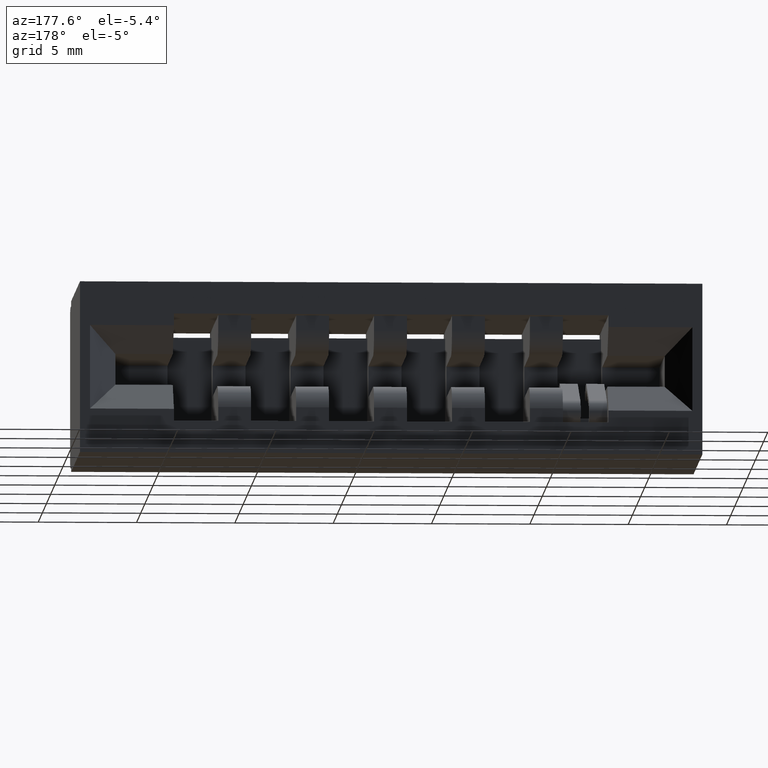
[diagram: clean part render]
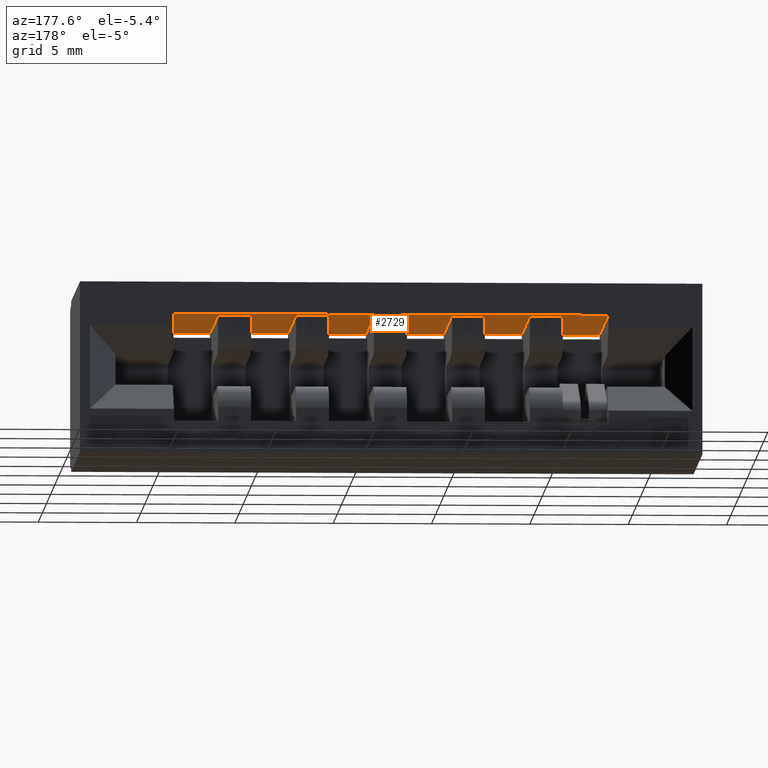
[diagram: same view with one face highlighted and labeled with its STEP entity id]
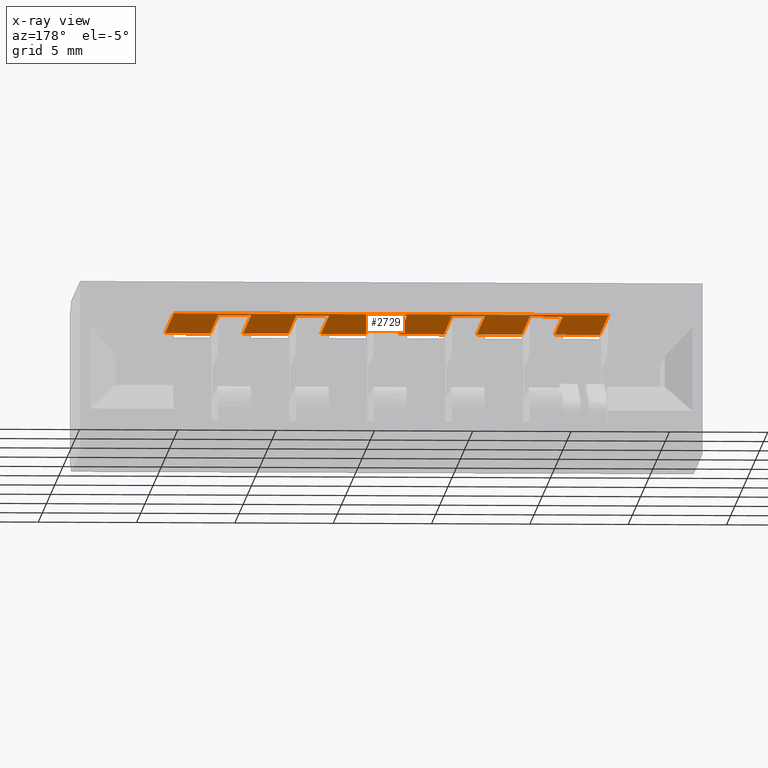
[diagram: x-ray of the same camera — body ghosted, the highlighted face saturated]
A machine part, auxiliary view. The second image highlights one B-rep face of the part: STEP entity #2729.
The next image is the same camera in x-ray: the body ghosted, the highlighted face saturated — about 7% of this face is hidden behind the body in this view.
In plain terms, the highlighted planar face has unit normal (0, 0, 1).
Its self-contained STEP definition (entity closure, byte-faithful):
#8 = LINE ( 'NONE', #5759, #22 ) ;
#22 = VECTOR ( 'NONE', #6396, 39.37007874015748100 ) ;
#29 = VERTEX_POINT ( 'NONE', #8475 ) ;
#115 = EDGE_CURVE ( 'NONE', #4998, #3089, #1166, .T. ) ;
#126 = ORIENTED_EDGE ( 'NONE', *, *, #4371, .F. ) ;
#154 = DIRECTION ( 'NONE',  ( -0.0000000000000000000, 1.000000000000000000, -0.0000000000000000000 ) ) ;
#164 = ORIENTED_EDGE ( 'NONE', *, *, #8916, .F. ) ;
#183 = EDGE_CURVE ( 'NONE', #778, #3916, #646, .T. ) ;
#273 = ORIENTED_EDGE ( 'NONE', *, *, #6225, .T. ) ;
#380 = DIRECTION ( 'NONE',  ( -0.0000000000000000000, 1.000000000000000000, -0.0000000000000000000 ) ) ;
#385 = ORIENTED_EDGE ( 'NONE', *, *, #8248, .F. ) ;
#398 = CARTESIAN_POINT ( 'NONE',  ( 0.5760000000000004000, 0.05099999999999999700, -0.06400000000000004300 ) ) ;
#484 = ORIENTED_EDGE ( 'NONE', *, *, #8576, .T. ) ;
#509 = ORIENTED_EDGE ( 'NONE', *, *, #8565, .T. ) ;
#566 = VECTOR ( 'NONE', #6079, 39.37007874015748100 ) ;
#596 = VERTEX_POINT ( 'NONE', #6298 ) ;
#626 = VECTOR ( 'NONE', #8853, 39.37007874015748100 ) ;
#646 = LINE ( 'NONE', #5884, #566 ) ;
#661 = LINE ( 'NONE', #8187, #626 ) ;
#680 = CARTESIAN_POINT ( 'NONE',  ( 0.4860000000000004300, 0.05099999999999999700, -0.06400000000000001500 ) ) ;
#692 = VECTOR ( 'NONE', #380, 39.37007874015748100 ) ;
#724 = CARTESIAN_POINT ( 'NONE',  ( 0.8880000000000004600, 0.05099999999999999700, -0.06399999999999997400 ) ) ;
#741 = ORIENTED_EDGE ( 'NONE', *, *, #8796, .T. ) ;
#756 = ORIENTED_EDGE ( 'NONE', *, *, #8585, .T. ) ;
#778 = VERTEX_POINT ( 'NONE', #6449 ) ;
#788 = VERTEX_POINT ( 'NONE', #8492 ) ;
#806 = LINE ( 'NONE', #1947, #692 ) ;
#828 = ORIENTED_EDGE ( 'NONE', *, *, #4398, .T. ) ;
#830 = ORIENTED_EDGE ( 'NONE', *, *, #5405, .T. ) ;
#848 = ORIENTED_EDGE ( 'NONE', *, *, #9094, .F. ) ;
#853 = DIRECTION ( 'NONE',  ( -1.000000000000000000, 0.0000000000000000000, 1.897116662266849500E-016 ) ) ;
#888 = ORIENTED_EDGE ( 'NONE', *, *, #8800, .F. ) ;
#926 = VECTOR ( 'NONE', #5428, 39.37007874015748100 ) ;
#963 = LINE ( 'NONE', #4812, #926 ) ;
#982 = VECTOR ( 'NONE', #2847, 39.37007874015748100 ) ;
#1075 = ORIENTED_EDGE ( 'NONE', *, *, #8399, .T. ) ;
#1166 = LINE ( 'NONE', #5172, #982 ) ;
#1196 = VECTOR ( 'NONE', #154, 39.37007874015748100 ) ;
#1213 = VECTOR ( 'NONE', #4227, 39.37007874015748100 ) ;
#1222 = AXIS2_PLACEMENT_3D ( 'NONE', #5955, #6029, #5922 ) ;
#1243 = LINE ( 'NONE', #7927, #1196 ) ;
#1267 = DIRECTION ( 'NONE',  ( -0.0000000000000000000, 1.000000000000000000, -0.0000000000000000000 ) ) ;
#1304 = ORIENTED_EDGE ( 'NONE', *, *, #8867, .T. ) ;
#1310 = LINE ( 'NONE', #5916, #1213 ) ;
#1336 = ORIENTED_EDGE ( 'NONE', *, *, #8970, .F. ) ;
#1349 = VECTOR ( 'NONE', #8042, 39.37007874015748100 ) ;
#1353 = ORIENTED_EDGE ( 'NONE', *, *, #8448, .T. ) ;
#1406 = CARTESIAN_POINT ( 'NONE',  ( 1.356000000000000500, 0.4729999999999999800, -0.06399999999999997400 ) ) ;
#1410 = LINE ( 'NONE', #9100, #1349 ) ;
#1441 = VERTEX_POINT ( 'NONE', #2874 ) ;
#1508 = VECTOR ( 'NONE', #5482, 39.37007874015748100 ) ;
#1511 = LINE ( 'NONE', #8768, #1508 ) ;
#1557 = VECTOR ( 'NONE', #3222, 39.37007874015748100 ) ;
#1597 = LINE ( 'NONE', #2453, #1557 ) ;
#1606 = VECTOR ( 'NONE', #853, 39.37007874015748100 ) ;
#1692 = LINE ( 'NONE', #9098, #1606 ) ;
#1711 = VERTEX_POINT ( 'NONE', #6015 ) ;
#1947 = CARTESIAN_POINT ( 'NONE',  ( 0.8880000000000004600, 0.1160000000000000100, -0.06400000000000004300 ) ) ;
#2016 = VERTEX_POINT ( 'NONE', #680 ) ;
#2236 = ORIENTED_EDGE ( 'NONE', *, *, #8962, .F. ) ;
#2293 = VERTEX_POINT ( 'NONE', #4918 ) ;
#2393 = DIRECTION ( 'NONE',  ( -1.000000000000000000, 0.0000000000000000000, 1.897116662266849500E-016 ) ) ;
#2422 = ORIENTED_EDGE ( 'NONE', *, *, #8556, .T. ) ;
#2453 = CARTESIAN_POINT ( 'NONE',  ( 1.356000000000000500, 0.4419999999999999500, -0.06399999999999997400 ) ) ;
#2512 = VERTEX_POINT ( 'NONE', #7538 ) ;
#2547 = EDGE_CURVE ( 'NONE', #5092, #7957, #8753, .T. ) ;
#2556 = CARTESIAN_POINT ( 'NONE',  ( 0.9540000000000004000, 0.1160000000000000100, -0.06400000000000001500 ) ) ;
#2560 = CARTESIAN_POINT ( 'NONE',  ( 1.200000000000000400, 0.1160000000000000100, -0.06400000000000004300 ) ) ;
#2563 = DIRECTION ( 'NONE',  ( -0.0000000000000000000, 1.000000000000000000, -0.0000000000000000000 ) ) ;
#2575 = CARTESIAN_POINT ( 'NONE',  ( 0.9540000000000004000, 0.05099999999999999700, -0.06399999999999997400 ) ) ;
#2600 = CARTESIAN_POINT ( 'NONE',  ( 0.5760000000000004000, 0.4729999999999999800, -0.06400000000000004300 ) ) ;
#2729 = ADVANCED_FACE ( 'NONE', ( #4799 ), #5981, .F. ) ;
#2847 = DIRECTION ( 'NONE',  ( -0.0000000000000000000, 1.000000000000000000, -0.0000000000000000000 ) ) ;
#2874 = CARTESIAN_POINT ( 'NONE',  ( 0.6420000000000004600, 0.05099999999999999700, -0.06399999999999997400 ) ) ;
#2969 = VERTEX_POINT ( 'NONE', #5682 ) ;
#3022 = EDGE_CURVE ( 'NONE', #1711, #596, #6222, .T. ) ;
#3089 = VERTEX_POINT ( 'NONE', #3165 ) ;
#3165 = CARTESIAN_POINT ( 'NONE',  ( 0.7980000000000003800, 0.4419999999999999500, -0.06399999999999997400 ) ) ;
#3222 = DIRECTION ( 'NONE',  ( -0.0000000000000000000, 1.000000000000000000, -0.0000000000000000000 ) ) ;
#3278 = CARTESIAN_POINT ( 'NONE',  ( 0.7320000000000004300, 0.4419999999999999500, -0.06400000000000004300 ) ) ;
#3323 = CARTESIAN_POINT ( 'NONE',  ( 1.110000000000000500, 0.4419999999999999500, -0.06399999999999997400 ) ) ;
#3456 = VECTOR ( 'NONE', #2563, 39.37007874015748100 ) ;
#3631 = EDGE_LOOP ( 'NONE', ( #888, #741, #5732, #6518, #8620, #2422, #828, #4947, #126, #273, #1075, #385, #2236, #509, #5194, #164, #5690, #484, #830, #1336, #848, #756, #1304, #1353 ) ) ;
#3644 = CARTESIAN_POINT ( 'NONE',  ( 0.4860000000000004300, 0.4729999999999999800, -0.06400000000000001500 ) ) ;
#3649 = VERTEX_POINT ( 'NONE', #6057 ) ;
#3890 = VERTEX_POINT ( 'NONE', #398 ) ;
#3916 = VERTEX_POINT ( 'NONE', #3278 ) ;
#3972 = CARTESIAN_POINT ( 'NONE',  ( 1.266000000000000500, 0.1160000000000000100, -0.06400000000000001500 ) ) ;
#4227 = DIRECTION ( 'NONE',  ( 1.000000000000000000, 0.0000000000000000000, 0.0000000000000000000 ) ) ;
#4280 = VERTEX_POINT ( 'NONE', #2575 ) ;
#4283 = VERTEX_POINT ( 'NONE', #8984 ) ;
#4298 = VERTEX_POINT ( 'NONE', #1406 ) ;
#4371 = EDGE_CURVE ( 'NONE', #4283, #788, #1511, .T. ) ;
#4398 = EDGE_CURVE ( 'NONE', #6278, #7338, #1410, .T. ) ;
#4432 = CARTESIAN_POINT ( 'NONE',  ( 1.200000000000000400, 0.4419999999999999500, -0.06400000000000004300 ) ) ;
#4560 = VECTOR ( 'NONE', #5364, 39.37007874015748100 ) ;
#4700 = VECTOR ( 'NONE', #6718, 39.37007874015748100 ) ;
#4729 = CARTESIAN_POINT ( 'NONE',  ( 1.110000000000000500, 0.05099999999999999700, -0.06399999999999997400 ) ) ;
#4736 = DIRECTION ( 'NONE',  ( -1.000000000000000000, 0.0000000000000000000, 1.897116662266849500E-016 ) ) ;
#4748 = LINE ( 'NONE', #6078, #4700 ) ;
#4758 = LINE ( 'NONE', #8722, #4560 ) ;
#4766 = VECTOR ( 'NONE', #8026, 39.37007874015748100 ) ;
#4799 = FACE_OUTER_BOUND ( 'NONE', #3631, .T. ) ;
#4805 = LINE ( 'NONE', #7374, #4766 ) ;
#4812 = CARTESIAN_POINT ( 'NONE',  ( 0.4860000000000004300, 0.4419999999999999500, -0.06399999999999997400 ) ) ;
#4829 = VECTOR ( 'NONE', #4736, 39.37007874015748100 ) ;
#4918 = CARTESIAN_POINT ( 'NONE',  ( 0.8880000000000004600, 0.4419999999999999500, -0.06400000000000004300 ) ) ;
#4947 = ORIENTED_EDGE ( 'NONE', *, *, #9125, .F. ) ;
#4986 = VECTOR ( 'NONE', #7967, 39.37007874015748100 ) ;
#4994 = LINE ( 'NONE', #7343, #4829 ) ;
#4998 = VERTEX_POINT ( 'NONE', #5490 ) ;
#5004 = LINE ( 'NONE', #2600, #4986 ) ;
#5049 = VECTOR ( 'NONE', #5966, 39.37007874015748100 ) ;
#5077 = LINE ( 'NONE', #2556, #5049 ) ;
#5092 = VERTEX_POINT ( 'NONE', #8730 ) ;
#5172 = CARTESIAN_POINT ( 'NONE',  ( 0.7980000000000003800, 0.1160000000000000100, -0.06400000000000001500 ) ) ;
#5194 = ORIENTED_EDGE ( 'NONE', *, *, #115, .T. ) ;
#5224 = VECTOR ( 'NONE', #5511, 39.37007874015748100 ) ;
#5364 = DIRECTION ( 'NONE',  ( -1.000000000000000000, 0.0000000000000000000, 1.897116662266849500E-016 ) ) ;
#5405 = EDGE_CURVE ( 'NONE', #1441, #29, #5439, .T. ) ;
#5428 = DIRECTION ( 'NONE',  ( 1.000000000000000000, 0.0000000000000000000, 0.0000000000000000000 ) ) ;
#5439 = LINE ( 'NONE', #6934, #5224 ) ;
#5440 = VECTOR ( 'NONE', #9082, 39.37007874015748100 ) ;
#5482 = DIRECTION ( 'NONE',  ( -0.0000000000000000000, 1.000000000000000000, -0.0000000000000000000 ) ) ;
#5490 = CARTESIAN_POINT ( 'NONE',  ( 0.7980000000000003800, 0.05099999999999999700, -0.06399999999999997400 ) ) ;
#5511 = DIRECTION ( 'NONE',  ( -0.0000000000000000000, 1.000000000000000000, -0.0000000000000000000 ) ) ;
#5638 = LINE ( 'NONE', #8497, #5440 ) ;
#5682 = CARTESIAN_POINT ( 'NONE',  ( 0.9540000000000002900, 0.4419999999999999500, -0.06399999999999997400 ) ) ;
#5690 = ORIENTED_EDGE ( 'NONE', *, *, #183, .F. ) ;
#5732 = ORIENTED_EDGE ( 'NONE', *, *, #3022, .T. ) ;
#5759 = CARTESIAN_POINT ( 'NONE',  ( 0.5760000000000004000, 0.1160000000000000100, -0.06400000000000004300 ) ) ;
#5818 = CARTESIAN_POINT ( 'NONE',  ( 0.4860000000000004300, 0.4419999999999999500, -0.06399999999999997400 ) ) ;
#5884 = CARTESIAN_POINT ( 'NONE',  ( 0.7320000000000004300, 0.1160000000000000100, -0.06400000000000004300 ) ) ;
#5916 = CARTESIAN_POINT ( 'NONE',  ( 0.4860000000000004300, 0.4419999999999999500, -0.06399999999999997400 ) ) ;
#5922 = DIRECTION ( 'NONE',  ( 1.000000000000000000, 0.0000000000000000000, -1.897116662266849500E-016 ) ) ;
#5955 = CARTESIAN_POINT ( 'NONE',  ( 0.5760000000000004000, 0.1160000000000000100, -0.06400000000000004300 ) ) ;
#5966 = DIRECTION ( 'NONE',  ( -0.0000000000000000000, 1.000000000000000000, -0.0000000000000000000 ) ) ;
#5981 = PLANE ( 'NONE',  #1222 ) ;
#6015 = CARTESIAN_POINT ( 'NONE',  ( 1.266000000000000500, 0.05099999999999999700, -0.06399999999999997400 ) ) ;
#6022 = VECTOR ( 'NONE', #6453, 39.37007874015748100 ) ;
#6029 = DIRECTION ( 'NONE',  ( 1.897116662266849500E-016, 0.0000000000000000000, 1.000000000000000000 ) ) ;
#6057 = CARTESIAN_POINT ( 'NONE',  ( 0.5760000000000004000, 0.4419999999999999500, -0.06399999999999997400 ) ) ;
#6078 = CARTESIAN_POINT ( 'NONE',  ( 0.5760000000000004000, 0.05099999999999999700, -0.06400000000000004300 ) ) ;
#6079 = DIRECTION ( 'NONE',  ( -0.0000000000000000000, 1.000000000000000000, -0.0000000000000000000 ) ) ;
#6097 = LINE ( 'NONE', #5818, #6022 ) ;
#6222 = LINE ( 'NONE', #3972, #9127 ) ;
#6225 = EDGE_CURVE ( 'NONE', #4283, #4280, #8829, .T. ) ;
#6278 = VERTEX_POINT ( 'NONE', #4729 ) ;
#6298 = CARTESIAN_POINT ( 'NONE',  ( 1.266000000000000500, 0.4419999999999999500, -0.06399999999999997400 ) ) ;
#6396 = DIRECTION ( 'NONE',  ( -0.0000000000000000000, 1.000000000000000000, -0.0000000000000000000 ) ) ;
#6406 = VERTEX_POINT ( 'NONE', #3644 ) ;
#6449 = CARTESIAN_POINT ( 'NONE',  ( 0.7320000000000004300, 0.05099999999999999700, -0.06399999999999997400 ) ) ;
#6453 = DIRECTION ( 'NONE',  ( 1.000000000000000000, 0.0000000000000000000, 0.0000000000000000000 ) ) ;
#6518 = ORIENTED_EDGE ( 'NONE', *, *, #8865, .F. ) ;
#6548 = CARTESIAN_POINT ( 'NONE',  ( 0.5760000000000004000, 0.05099999999999999700, -0.06400000000000004300 ) ) ;
#6718 = DIRECTION ( 'NONE',  ( -1.000000000000000000, 0.0000000000000000000, 1.897116662266849500E-016 ) ) ;
#6858 = VERTEX_POINT ( 'NONE', #724 ) ;
#6934 = CARTESIAN_POINT ( 'NONE',  ( 0.6420000000000004600, 0.1160000000000000100, -0.06400000000000001500 ) ) ;
#7338 = VERTEX_POINT ( 'NONE', #3323 ) ;
#7343 = CARTESIAN_POINT ( 'NONE',  ( 0.5760000000000004000, 0.05099999999999999700, -0.06400000000000004300 ) ) ;
#7374 = CARTESIAN_POINT ( 'NONE',  ( 0.5760000000000004000, 0.05099999999999999700, -0.06400000000000004300 ) ) ;
#7538 = CARTESIAN_POINT ( 'NONE',  ( 1.356000000000000500, 0.05100000000000001800, -0.06399999999999997400 ) ) ;
#7927 = CARTESIAN_POINT ( 'NONE',  ( 0.4860000000000004300, 0.1160000000000000100, -0.06400000000000001500 ) ) ;
#7957 = VERTEX_POINT ( 'NONE', #4432 ) ;
#7967 = DIRECTION ( 'NONE',  ( 1.000000000000000000, -0.0000000000000000000, -1.897116662266849500E-016 ) ) ;
#8026 = DIRECTION ( 'NONE',  ( -1.000000000000000000, 0.0000000000000000000, 1.897116662266849500E-016 ) ) ;
#8042 = DIRECTION ( 'NONE',  ( -0.0000000000000000000, 1.000000000000000000, -0.0000000000000000000 ) ) ;
#8187 = CARTESIAN_POINT ( 'NONE',  ( 0.4860000000000004300, 0.4419999999999999500, -0.06399999999999997400 ) ) ;
#8248 = EDGE_CURVE ( 'NONE', #2293, #2969, #5638, .T. ) ;
#8399 = EDGE_CURVE ( 'NONE', #4280, #2969, #5077, .T. ) ;
#8448 = EDGE_CURVE ( 'NONE', #6406, #4298, #5004, .T. ) ;
#8475 = CARTESIAN_POINT ( 'NONE',  ( 0.6420000000000004600, 0.4419999999999999500, -0.06399999999999997400 ) ) ;
#8492 = CARTESIAN_POINT ( 'NONE',  ( 1.044000000000000500, 0.4419999999999999500, -0.06400000000000004300 ) ) ;
#8497 = CARTESIAN_POINT ( 'NONE',  ( 0.4860000000000004300, 0.4419999999999999500, -0.06399999999999997400 ) ) ;
#8556 = EDGE_CURVE ( 'NONE', #5092, #6278, #4994, .T. ) ;
#8565 = EDGE_CURVE ( 'NONE', #6858, #4998, #4805, .T. ) ;
#8576 = EDGE_CURVE ( 'NONE', #778, #1441, #4748, .T. ) ;
#8585 = EDGE_CURVE ( 'NONE', #3890, #2016, #4758, .T. ) ;
#8620 = ORIENTED_EDGE ( 'NONE', *, *, #2547, .F. ) ;
#8722 = CARTESIAN_POINT ( 'NONE',  ( 0.5760000000000004000, 0.05099999999999999700, -0.06400000000000004300 ) ) ;
#8730 = CARTESIAN_POINT ( 'NONE',  ( 1.200000000000000400, 0.05099999999999999700, -0.06399999999999997400 ) ) ;
#8753 = LINE ( 'NONE', #2560, #3456 ) ;
#8768 = CARTESIAN_POINT ( 'NONE',  ( 1.044000000000000500, 0.1160000000000000100, -0.06400000000000004300 ) ) ;
#8778 = VECTOR ( 'NONE', #2393, 39.37007874015748100 ) ;
#8796 = EDGE_CURVE ( 'NONE', #2512, #1711, #1692, .T. ) ;
#8800 = EDGE_CURVE ( 'NONE', #2512, #4298, #1597, .T. ) ;
#8829 = LINE ( 'NONE', #6548, #8778 ) ;
#8853 = DIRECTION ( 'NONE',  ( 1.000000000000000000, 0.0000000000000000000, 0.0000000000000000000 ) ) ;
#8865 = EDGE_CURVE ( 'NONE', #7957, #596, #1310, .T. ) ;
#8867 = EDGE_CURVE ( 'NONE', #2016, #6406, #1243, .T. ) ;
#8916 = EDGE_CURVE ( 'NONE', #3916, #3089, #963, .T. ) ;
#8962 = EDGE_CURVE ( 'NONE', #6858, #2293, #806, .T. ) ;
#8970 = EDGE_CURVE ( 'NONE', #3649, #29, #661, .T. ) ;
#8984 = CARTESIAN_POINT ( 'NONE',  ( 1.044000000000000500, 0.05099999999999999700, -0.06399999999999997400 ) ) ;
#9082 = DIRECTION ( 'NONE',  ( 1.000000000000000000, 0.0000000000000000000, 0.0000000000000000000 ) ) ;
#9094 = EDGE_CURVE ( 'NONE', #3890, #3649, #8, .T. ) ;
#9098 = CARTESIAN_POINT ( 'NONE',  ( 0.5760000000000004000, 0.05099999999999999700, -0.06400000000000004300 ) ) ;
#9100 = CARTESIAN_POINT ( 'NONE',  ( 1.110000000000000500, 0.1160000000000000100, -0.06400000000000001500 ) ) ;
#9125 = EDGE_CURVE ( 'NONE', #788, #7338, #6097, .T. ) ;
#9127 = VECTOR ( 'NONE', #1267, 39.37007874015748100 ) ;